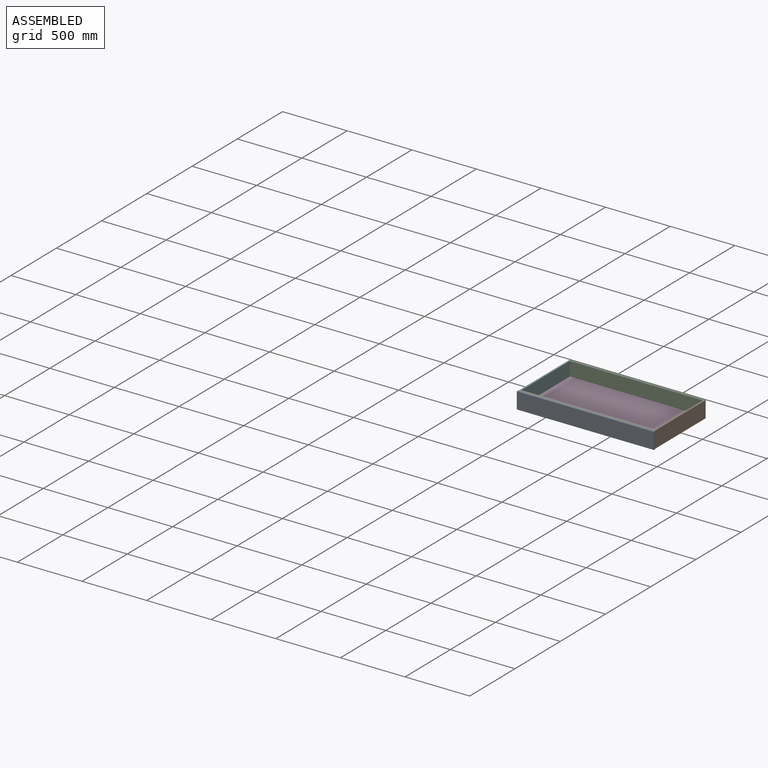
[diagram: assembled view]
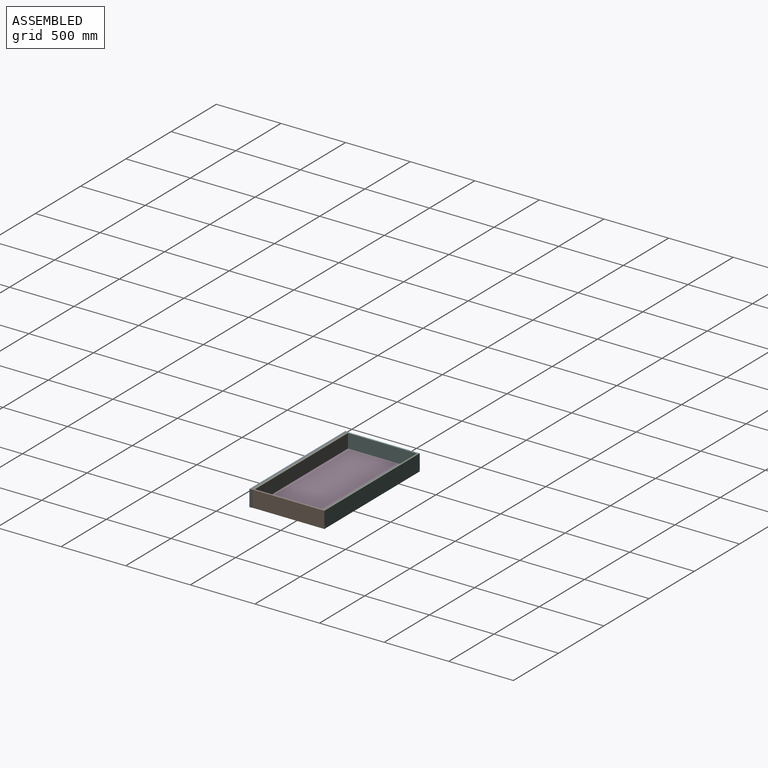
[diagram: assembled view, second angle]
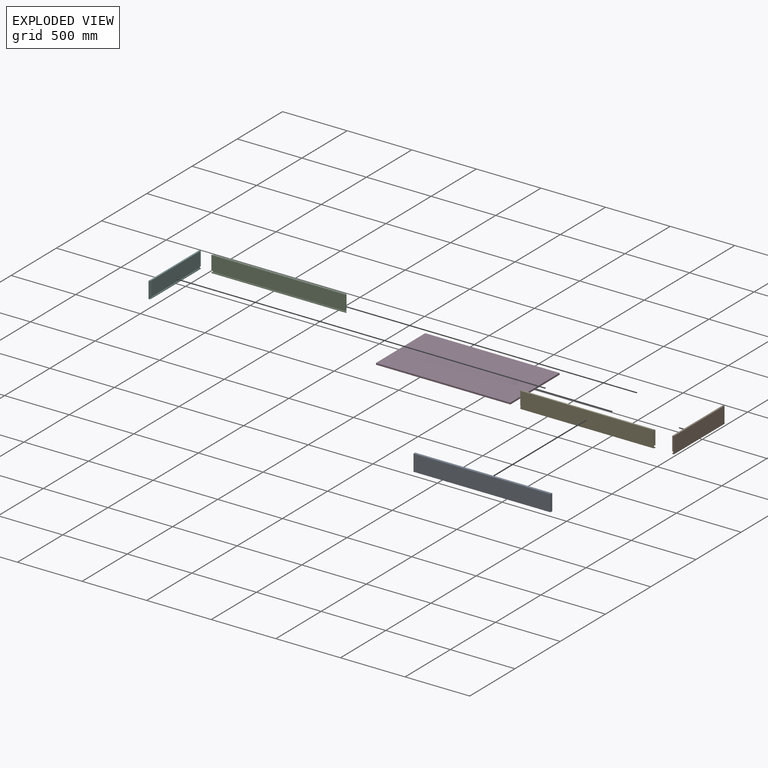
[diagram: exploded view]
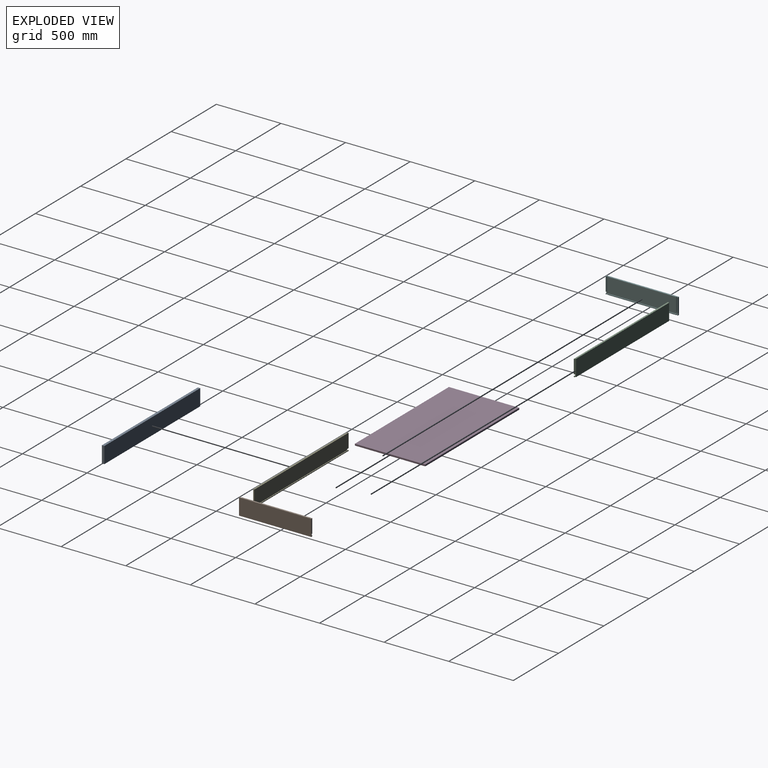
[diagram: exploded view, second angle]
ASSEMBLY  parts=6 mates=5
PART A: 6 faces, bbox 1060.5x19.1x127 mm
  f0: plane 127x19.05mm, normal (-1,0,0), area 2419.3mm2, adj f1,f3,f4,f5
  f1: plane 1060.45x19.05mm, normal (0,0,-1), area 20201.6mm2, adj f0,f2,f4,f5
  f2: plane 127x19.05mm, normal (1,0,0), area 2419.3mm2, adj f1,f3,f4,f5
  f3: plane 1060.45x19.05mm, normal (0,0,1), area 20201.6mm2, adj f0,f2,f4,f5
  f4: plane 1060.45x127mm, normal (0,-1,0), area 134677.1mm2, adj f0,f1,f2,f3
  f5: plane 1060.45x127mm, normal (0,1,0), area 134677.1mm2, adj f0,f1,f2,f3
PART B: 26 faces, bbox 12.7x558.8x127 mm
  f0: plane 533.4x107.95mm, normal (1,0,0), area 57580.5mm2, adj f5,f8,f19,f20
  f1: plane 107.95x6.35mm, normal (1,0,0), area 685.5mm2, adj f5,f9,f12,f18
  f2: plane 533.4x6.35mm, normal (1,0,0), area 3387.1mm2, adj f4,f6,f23,f25
  f3: plane 6.35x6.35mm, normal (1,0,0), area 40.3mm2, adj f4,f7,f12,f22
  f4: plane 558.8x12.7mm, normal (0,0,-1), area 7016.1mm2, adj f2,f3,f11,f12,f13,f14,f17,f22
  f5: plane 558.8x12.7mm, normal (0,0,1), area 7016.1mm2, adj f0,f1,f10,f11,f12,f14,f17,f18
  f6: plane 533.4x6.35mm, normal (0,0,1), area 3387.1mm2, adj f2,f17,f23,f25
  f7: plane 6.35x6.35mm, normal (0,0,1), area 40.3mm2, adj f3,f12,f17,f22
  f8: plane 533.4x6.35mm, normal (0,0,-1), area 3387.1mm2, adj f0,f17,f19,f20
  f9: plane 6.35x6.35mm, normal (0,0,-1), area 40.3mm2, adj f1,f12,f17,f18
  f10: plane 107.95x6.35mm, normal (1,0,0), area 685.5mm2, adj f5,f11,f16,f21
  f11: plane 127x12.7mm, normal (0,-1,0), area 1532.3mm2, adj f4,f5,f10,f13,f14,f15,f16,f17
  f12: plane 127x12.7mm, normal (0,1,0), area 1532.3mm2, adj f1,f3,f4,f5,f7,f9,f14,f17
  f13: plane 6.35x6.35mm, normal (1,0,0), area 40.3mm2, adj f4,f11,f15,f24
  f14: plane 558.8x127mm, normal (-1,0,0), area 70967.6mm2, adj f4,f5,f11,f12
  f15: plane 6.35x6.35mm, normal (0,0,1), area 40.3mm2, adj f11,f13,f17,f24
  f16: plane 6.35x6.35mm, normal (0,0,-1), area 40.3mm2, adj f10,f11,f17,f21
  f17: plane 558.8x127mm, normal (1,0,0), area 8548.4mm2, adj f4,f5,f6,f7,f8,f9,f11,f12
  f18: plane 107.95x6.35mm, normal (0,-1,0), area 685.5mm2, adj f1,f5,f9,f17
  f19: plane 107.95x6.35mm, normal (0,1,0), area 685.5mm2, adj f0,f5,f8,f17
  f20: plane 107.95x6.35mm, normal (0,-1,0), area 685.5mm2, adj f0,f5,f8,f17
  f21: plane 107.95x6.35mm, normal (0,1,0), area 685.5mm2, adj f5,f10,f16,f17
  f22: plane 6.35x6.35mm, normal (0,-1,0), area 40.3mm2, adj f3,f4,f7,f17
  f23: plane 6.35x6.35mm, normal (0,1,0), area 40.3mm2, adj f2,f4,f6,f17
  f24: plane 6.35x6.35mm, normal (0,1,0), area 40.3mm2, adj f4,f13,f15,f17
  f25: plane 6.35x6.35mm, normal (0,-1,0), area 40.3mm2, adj f2,f4,f6,f17
PART C: 18 faces, bbox 1041.4x12.7x127 mm
  f0: plane 6.35x6.35mm, normal (-1,0,0), area 40.3mm2, adj f6,f10,f14,f16
  f1: plane 6.35x6.35mm, normal (1,0,0), area 40.3mm2, adj f6,f10,f12,f16
  f2: plane 1041.4x107.95mm, normal (0,1,0), area 112419.1mm2, adj f5,f7,f8,f17
  f3: plane 107.95x6.35mm, normal (0,-1,0), area 685.5mm2, adj f7,f8,f11,f17
  f4: plane 107.95x6.35mm, normal (0,-1,0), area 685.5mm2, adj f5,f8,f13,f17
  f5: plane 107.95x6.35mm, normal (-1,0,0), area 685.5mm2, adj f2,f4,f8,f17
  f6: plane 1041.4x12.7mm, normal (0,0,-1), area 13145.1mm2, adj f0,f1,f9,f10,f11,f12,f13,f14
  f7: plane 107.95x6.35mm, normal (1,0,0), area 685.5mm2, adj f2,f3,f8,f17
  f8: plane 1041.4x12.7mm, normal (0,0,1), area 13145.1mm2, adj f2,f3,f4,f5,f7,f9,f11,f13
  f9: plane 1028.7x127mm, normal (0,-1,0), area 130644.9mm2, adj f6,f8,f11,f13
  f10: plane 1041.4x6.35mm, normal (0,1,0), area 6612.9mm2, adj f0,f1,f6,f16
  f11: plane 127x6.35mm, normal (1,0,0), area 806.5mm2, adj f3,f6,f8,f9,f12,f15
  f12: plane 6.35x6.35mm, normal (0,-1,0), area 40.3mm2, adj f1,f6,f11,f16
  f13: plane 127x6.35mm, normal (-1,0,0), area 806.5mm2, adj f4,f6,f8,f9,f14,f15
  f14: plane 6.35x6.35mm, normal (0,-1,0), area 40.3mm2, adj f0,f6,f13,f16
  f15: plane 1028.7x12.7mm, normal (0,1,0), area 13064.5mm2, adj f11,f13,f16,f17
  f16: plane 1041.4x6.35mm, normal (0,0,1), area 6612.9mm2, adj f0,f1,f10,f12,f14,f15
  f17: plane 1041.4x6.35mm, normal (0,0,-1), area 6612.9mm2, adj f2,f3,f4,f5,f7,f15
PART D: 6 faces, bbox 1039.8x544.5x12.7 mm
  f0: plane 1039.81x12.7mm, normal (0,-1,0), area 13205.6mm2, adj f1,f3,f4,f5
  f1: plane 544.51x12.7mm, normal (1,0,0), area 6915.3mm2, adj f0,f2,f4,f5
  f2: plane 1039.81x12.7mm, normal (0,1,0), area 13205.6mm2, adj f1,f3,f4,f5
  f3: plane 544.51x12.7mm, normal (-1,0,0), area 6915.3mm2, adj f0,f2,f4,f5
  f4: plane 1039.81x544.51mm, normal (0,0,1), area 566190.9mm2, adj f0,f1,f2,f3
  f5: plane 1039.81x544.51mm, normal (0,0,-1), area 566190.9mm2, adj f0,f1,f2,f3
PART E: same geometry as C
PART F: same geometry as B
PLACE A t=(-198.85,179.23,-72.11)mm
PLACE B rot(axis=(0,0,1),180deg) t=(858.43,738.03,-72.11)mm
PLACE C rot(axis=(0,0,1),180deg) t=(852.08,725.33,-72.11)mm
PLACE D t=(850.49,186.38,-65.76)mm
PLACE E t=(-189.32,191.93,-72.11)mm fixed
PLACE F t=(-195.67,179.23,-72.11)mm
MATE fastened E.f11 <-> B.f1  axis (1,0,0) through (845.73,179.23,54.89)mm
MATE fastened E.f9 <-> A.f5  axis (0,-1,0) through (331.38,179.23,-72.11)mm
MATE fastened E.f13 <-> F.f10  axis (-1,0,0) through (-182.97,179.23,54.89)mm
MATE fastened F.f1 <-> C.f11  axis (1,0,0) through (-182.97,738.03,54.89)mm
MATE fastened F.f17 <-> D.f3  axis (1,0,0) through (-189.32,458.63,-65.76)mm
